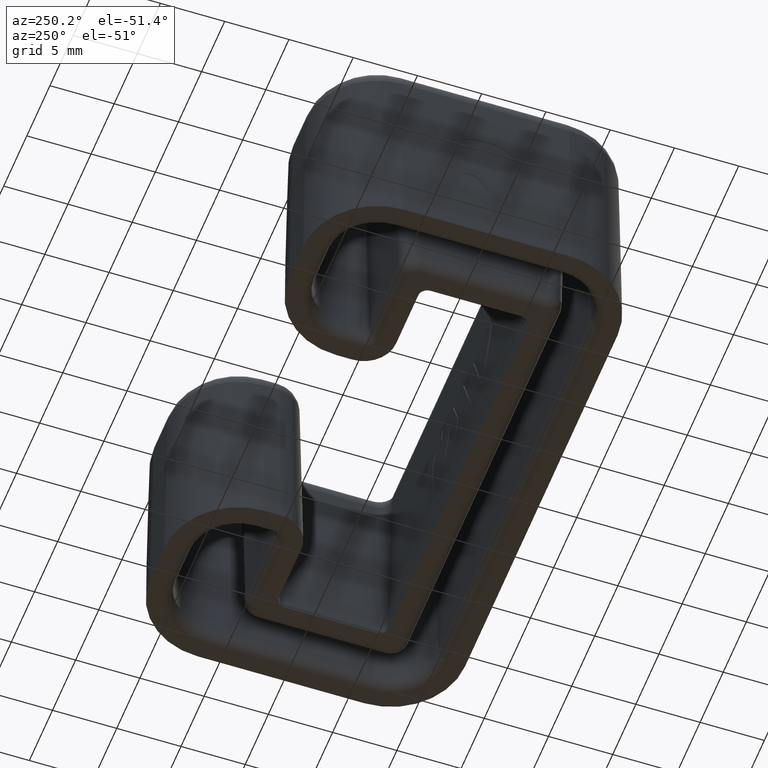
[diagram: clean part render]
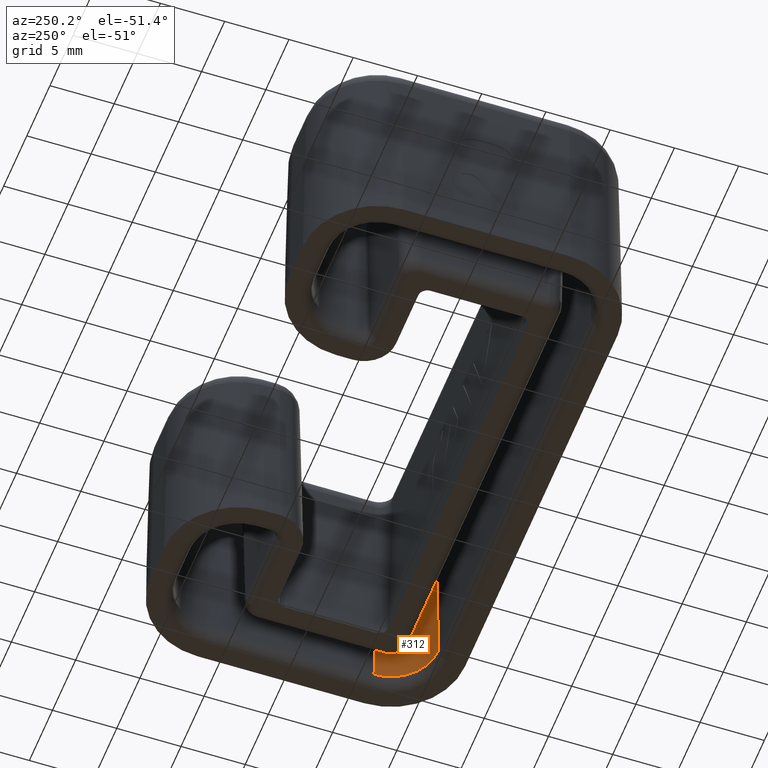
[diagram: same view with one face highlighted and labeled with its STEP entity id]
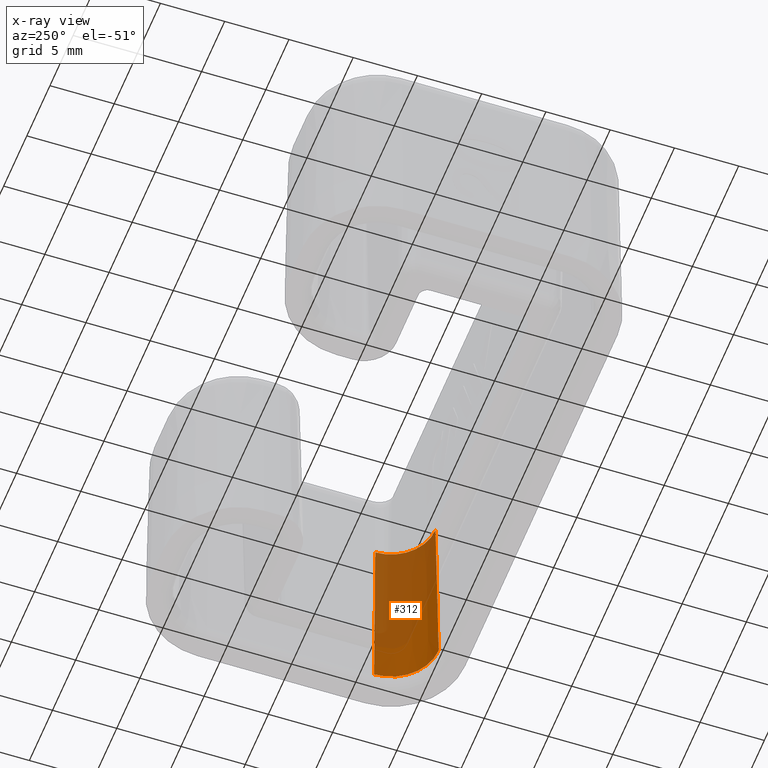
[diagram: x-ray of the same camera — body ghosted, the highlighted face saturated]
A machine part, auxiliary view. The second image highlights one B-rep face of the part: STEP entity #312.
The next image is the same camera in x-ray: the body ghosted, the highlighted face saturated — about 66% of this face is hidden behind the body in this view.
In plain terms, the highlighted conical surface has half-angle 1 deg.
Its self-contained STEP definition (entity closure, byte-faithful):
#312=ADVANCED_FACE('',(#666),#667,.F.);
#666=FACE_OUTER_BOUND('',#1071,.T.);
#667=CONICAL_SURFACE('',#1072,3.45,0.0174532925199416);
#1071=EDGE_LOOP('',(#2558,#2559,#2560,#2561));
#1072=AXIS2_PLACEMENT_3D('',#2562,#2563,#2564);
#2558=ORIENTED_EDGE('',*,*,#3110,.F.);
#2559=ORIENTED_EDGE('',*,*,#3058,.T.);
#2560=ORIENTED_EDGE('',*,*,#3108,.T.);
#2561=ORIENTED_EDGE('',*,*,#3111,.T.);
#2562=CARTESIAN_POINT('',(16.5,3.5,15.0));
#2563=DIRECTION('',(-0.0,-0.0,-1.0));
#2564=DIRECTION('',(-1.0,0.0,0.0));
#3058=EDGE_CURVE('',#3724,#3718,#3726,.T.);
#3108=EDGE_CURVE('',#3718,#3802,#3803,.T.);
#3110=EDGE_CURVE('',#3724,#3805,#3806,.T.);
#3111=EDGE_CURVE('',#3802,#3805,#3807,.T.);
#3718=VERTEX_POINT('',#5275);
#3724=VERTEX_POINT('',#5283);
#3726=CIRCLE('',#5285,3.69467554188257);
#3802=VERTEX_POINT('',#5388);
#3803=LINE('',#5389,#5390);
#3805=VERTEX_POINT('',#5393);
#3806=LINE('',#5394,#5395);
#3807=CIRCLE('',#5396,3.45);
#5275=CARTESIAN_POINT('',(16.5,-0.194675541882563,0.982547593562718));
#5283=CARTESIAN_POINT('',(20.1946755418825,3.5,0.982547593562718));
#5285=AXIS2_PLACEMENT_3D('',#5904,#5905,#5906);
#5388=CARTESIAN_POINT('',(16.5,0.05,15.0));
#5389=CARTESIAN_POINT('',(16.5,0.05,15.0));
#5390=VECTOR('',#6000,1000.0);
#5393=CARTESIAN_POINT('',(19.95,3.5,15.0));
#5394=CARTESIAN_POINT('',(19.95,3.5,15.0));
#5395=VECTOR('',#6002,1000.0);
#5396=AXIS2_PLACEMENT_3D('',#6003,#6004,#6005);
#5904=CARTESIAN_POINT('',(16.5,3.5,0.982547593562717));
#5905=DIRECTION('',(0.0,0.0,-1.0));
#5906=DIRECTION('',(-1.0,0.0,0.0));
#6000=DIRECTION('',(0.0,0.0174524064372835,0.999847695156391));
#6002=DIRECTION('',(-0.0174524064372835,-2.19384776514815E-18,0.999847695156391));
#6003=CARTESIAN_POINT('',(16.5,3.5,15.0));
#6004=DIRECTION('',(0.0,0.0,1.0));
#6005=DIRECTION('',(1.0,0.0,0.0));